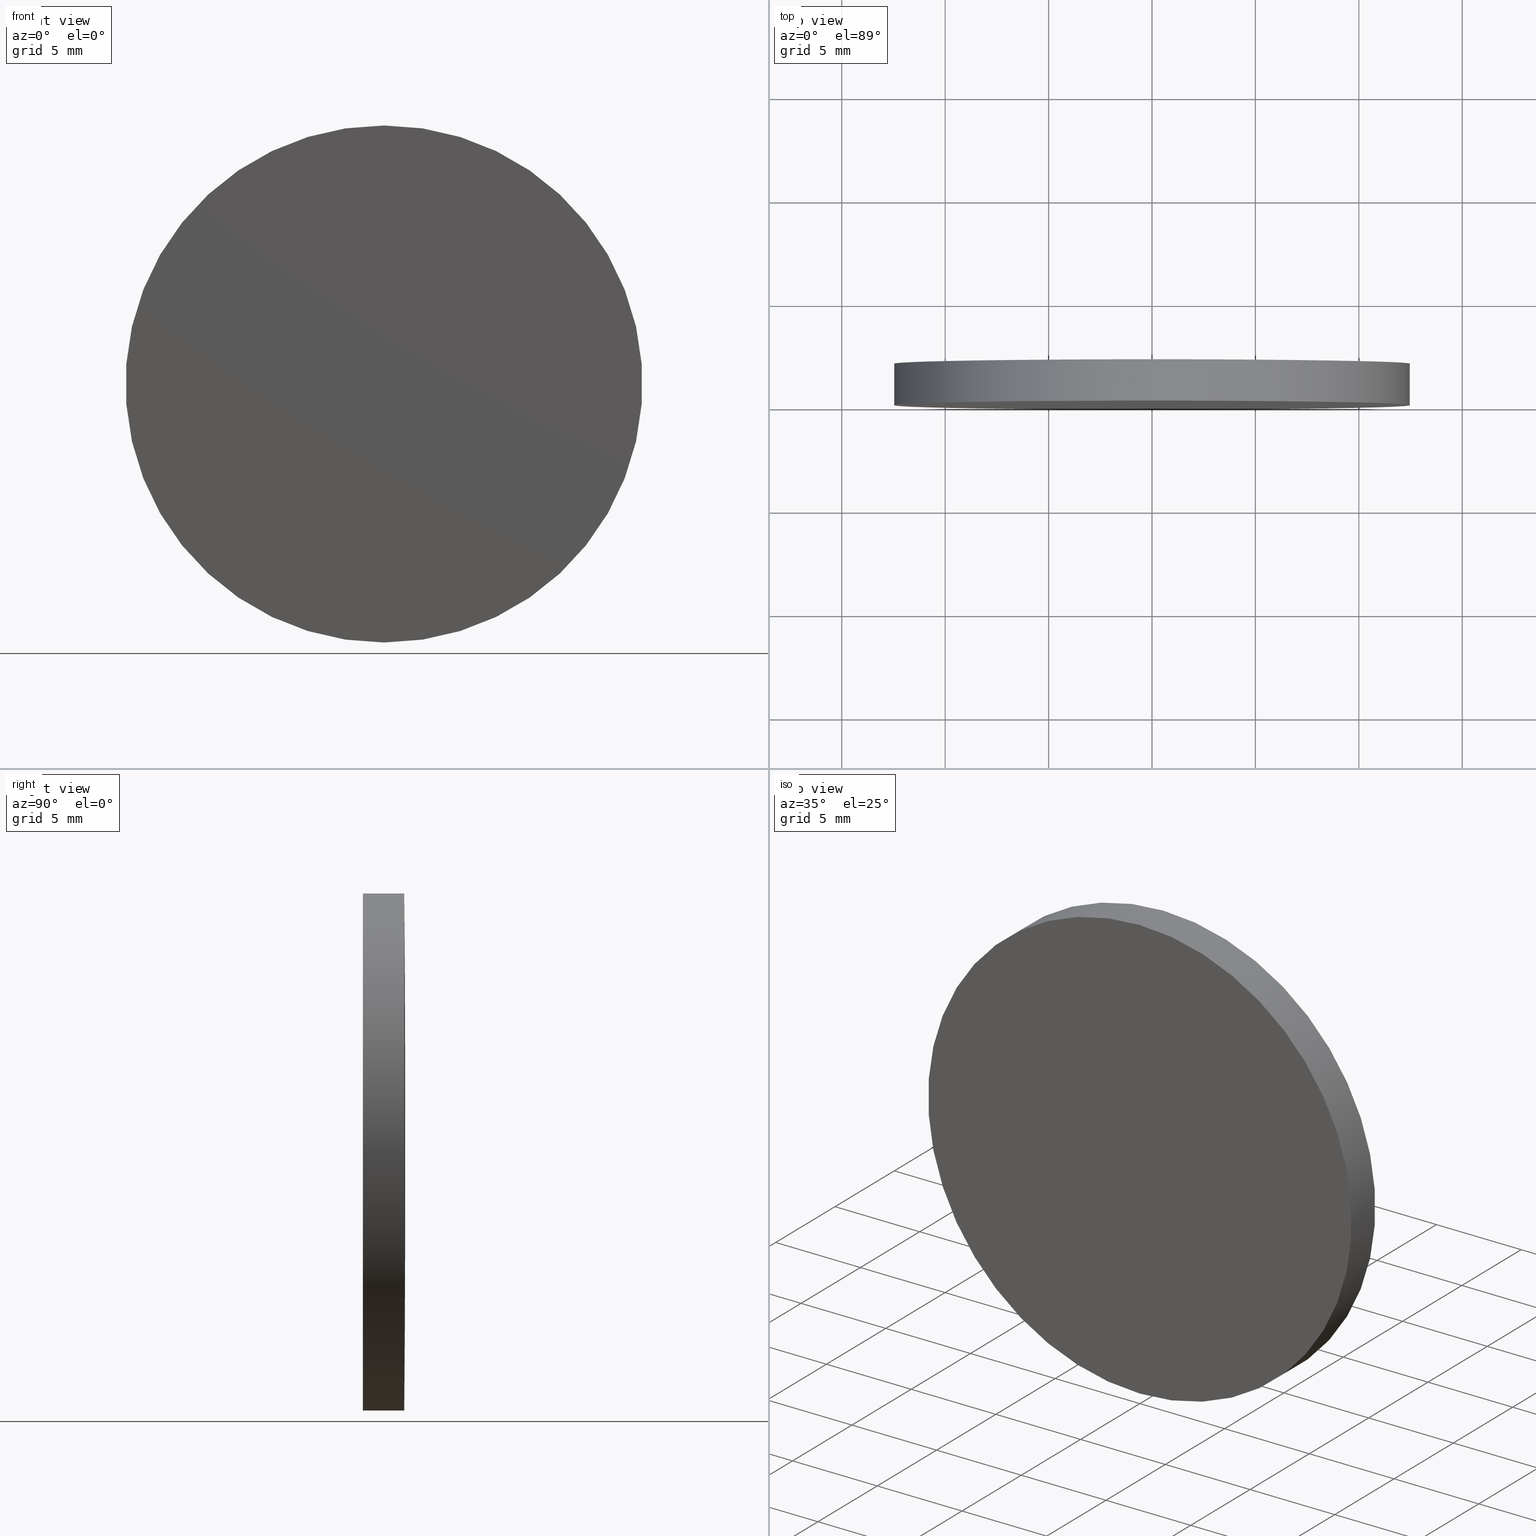
[diagram: canonical four-view strip — front | top / right | iso, engineering-drawing reading convention]
A machine part, canonical four-view strip (front | top / right | iso — engineering-drawing reading convention). The complete STEP part file that produces these views, byte-faithful:
ISO-10303-21;
HEADER;
FILE_DESCRIPTION (( 'STEP AP203' ),
    '1' );
FILE_NAME ('100569.STEP',
    '2024-05-09T07:25:28',
    ( '' ),
    ( '' ),
    'SwSTEP 2.0',
    'SolidWorks 2020',
    '' );
FILE_SCHEMA (( 'CONFIG_CONTROL_DESIGN' ));
ENDSEC;

DATA;
#1 = APPROVAL_STATUS ( 'not_yet_approved' ) ;
#2 = DIRECTION ( 'NONE',  ( 0.000000000000000000, 0.000000000000000000, 1.000000000000000000 ) ) ;
#3 = APPROVAL_STATUS ( 'not_yet_approved' ) ;
#4 = PRODUCT_RELATED_PRODUCT_CATEGORY ( 'detail', '', ( #119 ) ) ;
#5 = DIRECTION ( 'NONE',  ( 0.000000000000000000, 0.000000000000000000, 1.000000000000000000 ) ) ;
#6 = CIRCLE ( 'NONE', #101, 1033.599999999999909 ) ;
#7 = CARTESIAN_POINT ( 'NONE',  ( 0.000000000000000000, -1031.555811405951317, 0.000000000000000000 ) ) ;
#8 = DIRECTION ( 'NONE',  ( -0.000000000000000000, 1.000000000000000000, -0.000000000000000000 ) ) ;
#9 = APPROVAL_DATE_TIME ( #86, #99 ) ;
#10 = CC_DESIGN_APPROVAL ( #78, ( #47 ) ) ;
#11 = ORIENTED_EDGE ( 'NONE', *, *, #18, .F. ) ;
#12 = APPROVAL ( #3, 'δָ��' ) ;
#13 = DATE_AND_TIME ( #144, #157 ) ;
#14 = PERSON_AND_ORGANIZATION ( #129, #148 ) ;
#15 =( NAMED_UNIT ( * ) PLANE_ANGLE_UNIT ( ) SI_UNIT ( $, .RADIAN. ) );
#16 = DIRECTION ( 'NONE',  ( 0.000000000000000000, -0.000000000000000000, -1.000000000000000000 ) ) ;
#17 =( GEOMETRIC_REPRESENTATION_CONTEXT ( 3 ) GLOBAL_UNCERTAINTY_ASSIGNED_CONTEXT ( ( #133 ) ) GLOBAL_UNIT_ASSIGNED_CONTEXT ( ( #152, #15, #187 ) ) REPRESENTATION_CONTEXT ( 'NONE', 'WORKASPACE' ) );
#18 = EDGE_CURVE ( 'NONE', #164, #179, #77, .T. ) ;
#19 = CARTESIAN_POINT ( 'NONE',  ( 0.000000000000000000, -1031.555811405951317, 2.942557403500804192 ) ) ;
#20 = LOCAL_TIME ( 15, 25, 28.00000000000000000, #26 ) ;
#21 = FACE_OUTER_BOUND ( 'NONE', #75, .T. ) ;
#22 = DIRECTION ( 'NONE',  ( -0.000000000000000000, 1.000000000000000000, -0.000000000000000000 ) ) ;
#23 = AXIS2_PLACEMENT_3D ( 'NONE', #130, #8, #69 ) ;
#24 = EDGE_LOOP ( 'NONE', ( #134, #42, #29, #44 ) ) ;
#25 = PERSON_AND_ORGANIZATION_ROLE ( 'classification_officer' ) ;
#26 = COORDINATED_UNIVERSAL_TIME_OFFSET ( 8, 0, .AHEAD. ) ;
#27 = TOROIDAL_SURFACE ( 'NONE', #87, 2.942557403500804192, 1033.599999999999909 ) ;
#28 = CC_DESIGN_PERSON_AND_ORGANIZATION_ASSIGNMENT ( #120, #25, ( #47 ) ) ;
#29 = ORIENTED_EDGE ( 'NONE', *, *, #31, .F. ) ;
#30 = PERSON_AND_ORGANIZATION_ROLE ( 'design_owner' ) ;
#31 = EDGE_CURVE ( 'NONE', #107, #179, #97, .T. ) ;
#32 = FACE_OUTER_BOUND ( 'NONE', #93, .T. ) ;
#33 = ORIENTED_EDGE ( 'NONE', *, *, #114, .T. ) ;
#34 = CALENDAR_DATE ( 2024, 9, 5 ) ;
#35 = CC_DESIGN_PERSON_AND_ORGANIZATION_ASSIGNMENT ( #169, #108, ( #37 ) ) ;
#36 = DIRECTION ( 'NONE',  ( 1.000000000000000000, 0.000000000000000000, 1.224646799147353207E-16 ) ) ;
#37 = PRODUCT_DEFINITION ( 'δ֪', '', #117, #85 ) ;
#38 = CC_DESIGN_PERSON_AND_ORGANIZATION_ASSIGNMENT ( #58, #131, ( #117 ) ) ;
#39 = ORIENTED_EDGE ( 'NONE', *, *, #31, .T. ) ;
#40 = AXIS2_PLACEMENT_3D ( 'NONE', #103, #91, #165 ) ;
#41 = APPROVAL_ROLE ( '' ) ;
#42 = ORIENTED_EDGE ( 'NONE', *, *, #18, .T. ) ;
#43 = EDGE_LOOP ( 'NONE', ( #73, #126, #182 ) ) ;
#44 = ORIENTED_EDGE ( 'NONE', *, *, #114, .F. ) ;
#45 = APPLICATION_PROTOCOL_DEFINITION ( 'international standard', 'config_control_design', 1994, #136 ) ;
#46 = ADVANCED_FACE ( 'NONE', ( #153 ), #135, .T. ) ;
#47 = SECURITY_CLASSIFICATION ( '', '', #195 ) ;
#48 = DIRECTION ( 'NONE',  ( -0.000000000000000000, 1.000000000000000000, -0.000000000000000000 ) ) ;
#49 = CALENDAR_DATE ( 2024, 9, 5 ) ;
#50 = CARTESIAN_POINT ( 'NONE',  ( 0.000000000000000000, -1.734723475976807094E-15, 0.000000000000000000 ) ) ;
#51 = DIRECTION ( 'NONE',  ( 0.000000000000000000, 0.000000000000000000, 1.000000000000000000 ) ) ;
#52 = LOCAL_TIME ( 15, 25, 28.00000000000000000, #168 ) ;
#53 = DIRECTION ( 'NONE',  ( -0.000000000000000000, 1.000000000000000000, -0.000000000000000000 ) ) ;
#54 = PERSON_AND_ORGANIZATION ( #129, #148 ) ;
#55 = CARTESIAN_POINT ( 'NONE',  ( 0.000000000000000000, 2.040000000000000036, 0.000000000000000000 ) ) ;
#56 = ADVANCED_FACE ( 'NONE', ( #196 ), #145, .T. ) ;
#57 = CC_DESIGN_SECURITY_CLASSIFICATION ( #47, ( #117 ) ) ;
#58 = PERSON_AND_ORGANIZATION ( #129, #148 ) ;
#59 = CALENDAR_DATE ( 2024, 9, 5 ) ;
#60 = DATE_AND_TIME ( #34, #52 ) ;
#61 = ORIENTED_EDGE ( 'NONE', *, *, #138, .F. ) ;
#62 = CARTESIAN_POINT ( 'NONE',  ( 0.000000000000000000, 2.040000000000000036, 0.000000000000000000 ) ) ;
#63 = CARTESIAN_POINT ( 'NONE',  ( 1.530808498934191521E-15, 2.040000000000000036, -12.50000000000000000 ) ) ;
#64 = LOCAL_TIME ( 15, 25, 28.00000000000000000, #84 ) ;
#65 = DATE_AND_TIME ( #49, #72 ) ;
#66 = AXIS2_PLACEMENT_3D ( 'NONE', #79, #188, #16 ) ;
#67 = CARTESIAN_POINT ( 'NONE',  ( 0.000000000000000000, 1.999999999999998224, 0.000000000000000000 ) ) ;
#68 = AXIS2_PLACEMENT_3D ( 'NONE', #19, #193, #51 ) ;
#69 = DIRECTION ( 'NONE',  ( 0.000000000000000000, 0.000000000000000000, 1.000000000000000000 ) ) ;
#70 = EDGE_CURVE ( 'NONE', #164, #111, #89, .T. ) ;
#71 = DATE_AND_TIME ( #59, #64 ) ;
#72 = LOCAL_TIME ( 15, 25, 28.00000000000000000, #112 ) ;
#73 = ORIENTED_EDGE ( 'NONE', *, *, #147, .F. ) ;
#74 = CC_DESIGN_DATE_AND_TIME_ASSIGNMENT ( #60, #123, ( #37 ) ) ;
#75 = EDGE_LOOP ( 'NONE', ( #39, #161, #61 ) ) ;
#76 = APPLICATION_PROTOCOL_DEFINITION ( 'international standard', 'config_control_design', 1994, #162 ) ;
#77 = LINE ( 'NONE', #63, #160 ) ;
#78 = APPROVAL ( #1, 'δָ��' ) ;
#79 = CARTESIAN_POINT ( 'NONE',  ( 0.000000000000000000, -7.654042494670958593E-16, 0.000000000000000000 ) ) ;
#80 = AXIS2_PLACEMENT_3D ( 'NONE', #62, #48, #2 ) ;
#81 = AXIS2_PLACEMENT_3D ( 'NONE', #50, #170, #155 ) ;
#82 = CARTESIAN_POINT ( 'NONE',  ( 0.000000000000000000, 2.040000000000000036, 0.000000000000000000 ) ) ;
#83 = FACE_OUTER_BOUND ( 'NONE', #43, .T. ) ;
#84 = COORDINATED_UNIVERSAL_TIME_OFFSET ( 8, 0, .AHEAD. ) ;
#85 = DESIGN_CONTEXT ( 'detailed design', #162, 'design' ) ;
#86 = DATE_AND_TIME ( #100, #20 ) ;
#87 = AXIS2_PLACEMENT_3D ( 'NONE', #7, #167, #137 ) ;
#88 = PERSON_AND_ORGANIZATION ( #129, #148 ) ;
#89 = CIRCLE ( 'NONE', #23, 12.50000000000000000 ) ;
#90 = CYLINDRICAL_SURFACE ( 'NONE', #80, 12.50000000000000000 ) ;
#91 = DIRECTION ( 'NONE',  ( -0.000000000000000000, 1.000000000000000000, -0.000000000000000000 ) ) ;
#92 = PERSON_AND_ORGANIZATION ( #129, #148 ) ;
#93 = EDGE_LOOP ( 'NONE', ( #11, #102, #33, #124 ) ) ;
#94 = LINE ( 'NONE', #159, #166 ) ;
#95 = APPROVAL_PERSON_ORGANIZATION ( #88, #99, #41 ) ;
#96 = CARTESIAN_POINT ( 'NONE',  ( 1.530808498934191521E-15, -1.734723475976807094E-15, -12.50000000000000000 ) ) ;
#97 = CIRCLE ( 'NONE', #40, 12.50000000000000000 ) ;
#98 = VERTEX_POINT ( 'NONE', #82 ) ;
#99 = APPROVAL ( #176, 'δָ��' ) ;
#100 = CALENDAR_DATE ( 2024, 9, 5 ) ;
#101 = AXIS2_PLACEMENT_3D ( 'NONE', #192, #36, #171 ) ;
#102 = ORIENTED_EDGE ( 'NONE', *, *, #70, .T. ) ;
#103 = CARTESIAN_POINT ( 'NONE',  ( 0.000000000000000000, 1.999999999999998224, 0.000000000000000000 ) ) ;
#104 = MECHANICAL_CONTEXT ( 'NONE', #136, 'mechanical' ) ;
#105 = CIRCLE ( 'NONE', #68, 1033.599999999999909 ) ;
#106 = CARTESIAN_POINT ( 'NONE',  ( 0.000000000000000000, 0.000000000000000000, 0.000000000000000000 ) ) ;
#107 = VERTEX_POINT ( 'NONE', #142 ) ;
#108 = PERSON_AND_ORGANIZATION_ROLE ( 'creator' ) ;
#109 = ADVANCED_BREP_SHAPE_REPRESENTATION ( '100569', ( #191, #132 ), #17 ) ;
#110 = DATE_TIME_ROLE ( 'classification_date' ) ;
#111 = VERTEX_POINT ( 'NONE', #118 ) ;
#112 = COORDINATED_UNIVERSAL_TIME_OFFSET ( 8, 0, .AHEAD. ) ;
#113 = CC_DESIGN_PERSON_AND_ORGANIZATION_ASSIGNMENT ( #14, #30, ( #119 ) ) ;
#114 = EDGE_CURVE ( 'NONE', #111, #107, #94, .T. ) ;
#115 = CARTESIAN_POINT ( 'NONE',  ( 0.000000000000000000, -1031.555811405951317, 0.000000000000000000 ) ) ;
#116 = EDGE_CURVE ( 'NONE', #111, #164, #141, .T. ) ;
#117 = PRODUCT_DEFINITION_FORMATION_WITH_SPECIFIED_SOURCE ( '�κ�', '', #119, .NOT_KNOWN. ) ;
#118 = CARTESIAN_POINT ( 'NONE',  ( 0.000000000000000000, -1.734723475976807094E-15, 12.50000000000000000 ) ) ;
#119 = PRODUCT ( '100569', '100569', '', ( #104 ) ) ;
#120 = PERSON_AND_ORGANIZATION ( #129, #148 ) ;
#121 = CC_DESIGN_DATE_AND_TIME_ASSIGNMENT ( #71, #110, ( #47 ) ) ;
#122 = AXIS2_PLACEMENT_3D ( 'NONE', #67, #174, #5 ) ;
#123 = DATE_TIME_ROLE ( 'creation_date' ) ;
#124 = ORIENTED_EDGE ( 'NONE', *, *, #125, .F. ) ;
#125 = EDGE_CURVE ( 'NONE', #179, #107, #198, .T. ) ;
#126 = ORIENTED_EDGE ( 'NONE', *, *, #125, .T. ) ;
#127 = DIRECTION ( 'NONE',  ( 1.000000000000000000, 0.000000000000000000, 0.000000000000000000 ) ) ;
#128 = DIRECTION ( 'NONE',  ( 0.000000000000000000, 0.000000000000000000, 1.000000000000000000 ) ) ;
#129 = PERSON ( 'δָ��', 'δָ��', 'δָ��', ('δָ��'), ('δָ��'), ('δָ��') ) ;
#130 = CARTESIAN_POINT ( 'NONE',  ( 0.000000000000000000, -1.734723475976807094E-15, 0.000000000000000000 ) ) ;
#131 = PERSON_AND_ORGANIZATION_ROLE ( 'design_supplier' ) ;
#132 = AXIS2_PLACEMENT_3D ( 'NONE', #106, #184, #127 ) ;
#133 = UNCERTAINTY_MEASURE_WITH_UNIT (LENGTH_MEASURE( 1.000000000000000082E-05 ), #152, 'distance_accuracy_value', 'NONE');
#134 = ORIENTED_EDGE ( 'NONE', *, *, #116, .T. ) ;
#135 = PLANE ( 'NONE',  #66 ) ;
#136 = APPLICATION_CONTEXT ( 'configuration controlled 3d designs of mechanical parts and assemblies' ) ;
#137 = DIRECTION ( 'NONE',  ( 0.000000000000000000, 0.000000000000000000, 1.000000000000000000 ) ) ;
#138 = EDGE_CURVE ( 'NONE', #107, #98, #105, .T. ) ;
#139 = PERSON_AND_ORGANIZATION ( #129, #148 ) ;
#140 = CC_DESIGN_APPROVAL ( #12, ( #37 ) ) ;
#141 = CIRCLE ( 'NONE', #81, 12.50000000000000000 ) ;
#142 = CARTESIAN_POINT ( 'NONE',  ( 0.000000000000000000, 2.000000000000000000, 12.49999999999528555 ) ) ;
#143 = TOROIDAL_SURFACE ( 'NONE', #177, 2.942557403500804192, 1033.599999999999909 ) ;
#144 = CALENDAR_DATE ( 2024, 9, 5 ) ;
#145 = CYLINDRICAL_SURFACE ( 'NONE', #175, 12.50000000000000000 ) ;
#146 = ADVANCED_FACE ( 'NONE', ( #83 ), #143, .T. ) ;
#147 = EDGE_CURVE ( 'NONE', #179, #98, #6, .T. ) ;
#148 = ORGANIZATION ( 'δָ��', 'δָ��', '' ) ;
#149 = APPROVAL_DATE_TIME ( #13, #78 ) ;
#150 = CC_DESIGN_PERSON_AND_ORGANIZATION_ASSIGNMENT ( #54, #197, ( #117 ) ) ;
#151 = APPROVAL_ROLE ( '' ) ;
#152 =( LENGTH_UNIT ( ) NAMED_UNIT ( * ) SI_UNIT ( .MILLI., .METRE. ) );
#153 = FACE_OUTER_BOUND ( 'NONE', #180, .T. ) ;
#154 = ORIENTED_EDGE ( 'NONE', *, *, #70, .F. ) ;
#155 = DIRECTION ( 'NONE',  ( 0.000000000000000000, 0.000000000000000000, 1.000000000000000000 ) ) ;
#156 = DIRECTION ( 'NONE',  ( 0.000000000000000000, 0.000000000000000000, 1.000000000000000000 ) ) ;
#157 = LOCAL_TIME ( 15, 25, 28.00000000000000000, #183 ) ;
#158 = CARTESIAN_POINT ( 'NONE',  ( 1.530808498933614470E-15, 2.000000000000000000, -12.49999999999528555 ) ) ;
#159 = CARTESIAN_POINT ( 'NONE',  ( 0.000000000000000000, 2.040000000000000036, 12.50000000000000000 ) ) ;
#160 = VECTOR ( 'NONE', #185, 1000.000000000000000 ) ;
#161 = ORIENTED_EDGE ( 'NONE', *, *, #147, .T. ) ;
#162 = APPLICATION_CONTEXT ( 'configuration controlled 3d designs of mechanical parts and assemblies' ) ;
#163 = CC_DESIGN_APPROVAL ( #99, ( #117 ) ) ;
#164 = VERTEX_POINT ( 'NONE', #96 ) ;
#165 = DIRECTION ( 'NONE',  ( 0.000000000000000000, 0.000000000000000000, 1.000000000000000000 ) ) ;
#166 = VECTOR ( 'NONE', #22, 1000.000000000000000 ) ;
#167 = DIRECTION ( 'NONE',  ( -0.000000000000000000, 1.000000000000000000, -0.000000000000000000 ) ) ;
#168 = COORDINATED_UNIVERSAL_TIME_OFFSET ( 8, 0, .AHEAD. ) ;
#169 = PERSON_AND_ORGANIZATION ( #129, #148 ) ;
#170 = DIRECTION ( 'NONE',  ( -0.000000000000000000, 1.000000000000000000, -0.000000000000000000 ) ) ;
#171 = DIRECTION ( 'NONE',  ( 1.224646799147353207E-16, 0.000000000000000000, -1.000000000000000000 ) ) ;
#172 = DIRECTION ( 'NONE',  ( -0.000000000000000000, 1.000000000000000000, -0.000000000000000000 ) ) ;
#173 = APPROVAL_PERSON_ORGANIZATION ( #92, #78, #151 ) ;
#174 = DIRECTION ( 'NONE',  ( -0.000000000000000000, 1.000000000000000000, -0.000000000000000000 ) ) ;
#175 = AXIS2_PLACEMENT_3D ( 'NONE', #55, #53, #156 ) ;
#176 = APPROVAL_STATUS ( 'not_yet_approved' ) ;
#177 = AXIS2_PLACEMENT_3D ( 'NONE', #115, #172, #128 ) ;
#178 = SHAPE_DEFINITION_REPRESENTATION ( #181, #109 ) ;
#179 = VERTEX_POINT ( 'NONE', #158 ) ;
#180 = EDGE_LOOP ( 'NONE', ( #200, #154 ) ) ;
#181 = PRODUCT_DEFINITION_SHAPE ( 'NONE', 'NONE',  #37 ) ;
#182 = ORIENTED_EDGE ( 'NONE', *, *, #138, .T. ) ;
#183 = COORDINATED_UNIVERSAL_TIME_OFFSET ( 8, 0, .AHEAD. ) ;
#184 = DIRECTION ( 'NONE',  ( 0.000000000000000000, 0.000000000000000000, 1.000000000000000000 ) ) ;
#185 = DIRECTION ( 'NONE',  ( -0.000000000000000000, 1.000000000000000000, -0.000000000000000000 ) ) ;
#186 = ADVANCED_FACE ( 'NONE', ( #21 ), #27, .T. ) ;
#187 =( NAMED_UNIT ( * ) SI_UNIT ( $, .STERADIAN. ) SOLID_ANGLE_UNIT ( ) );
#188 = DIRECTION ( 'NONE',  ( 0.000000000000000000, -1.000000000000000000, 0.000000000000000000 ) ) ;
#189 = APPROVAL_DATE_TIME ( #65, #12 ) ;
#190 = APPROVAL_ROLE ( '' ) ;
#191 = MANIFOLD_SOLID_BREP ( '��ת1', #201 ) ;
#192 = CARTESIAN_POINT ( 'NONE',  ( 3.603593505504606522E-16, -1031.555811405951317, -2.942557403500804192 ) ) ;
#193 = DIRECTION ( 'NONE',  ( -1.000000000000000000, 0.000000000000000000, 0.000000000000000000 ) ) ;
#194 = APPROVAL_PERSON_ORGANIZATION ( #139, #12, #190 ) ;
#195 = SECURITY_CLASSIFICATION_LEVEL ( 'unclassified' ) ;
#196 = FACE_OUTER_BOUND ( 'NONE', #24, .T. ) ;
#197 = PERSON_AND_ORGANIZATION_ROLE ( 'creator' ) ;
#198 = CIRCLE ( 'NONE', #122, 12.50000000000000000 ) ;
#199 = ADVANCED_FACE ( 'NONE', ( #32 ), #90, .T. ) ;
#200 = ORIENTED_EDGE ( 'NONE', *, *, #116, .F. ) ;
#201 = CLOSED_SHELL ( 'NONE', ( #56, #186, #146, #46, #199 ) ) ;
ENDSEC;
END-ISO-10303-21;
